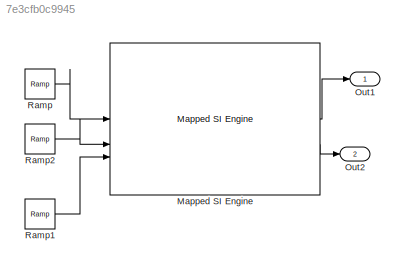
MODEL slx_7e3cfb0c9945
KIND model
CONFIG AbsTol = auto
CONFIG EnableMultiTasking = off
CONFIG FixedStep = auto
CONFIG MaxStep = auto
CONFIG MinStep = auto
CONFIG RelTol = 1e-3
CONFIG SampleTimeConstraint = Unconstrained
CONFIG SolverName = VariableStepAuto
CONFIG StartTime = 0.0
CONFIG StopTime = 50
BLOCK [Reference] Mapped SI Engine  REF=autolibsharedmappedengines/Mapped SI Engine
  LibrarySourceBlock = autolibenginesystems/Mapped SI Engine
  SourceBlock = autolibsharedmappedengines/Mapped SI Engine
  SourceType = Mapped SI Engine
BLOCK [Outport] Out1
BLOCK [Outport] Out2
  Port = 2
BLOCK [Reference] Ramp  REF=simulink/Sources/Ramp
  SourceBlock = simulink/Sources/Ramp
  SourceType = Ramp
BLOCK [Reference] Ramp1  REF=simulink/Sources/Ramp
  SourceBlock = simulink/Sources/Ramp
  SourceType = Ramp
BLOCK [Reference] Ramp2  REF=simulink/Sources/Ramp
  SourceBlock = simulink/Sources/Ramp
  SourceType = Ramp
LINE Mapped SI Engine:1 -> Out1:1
LINE Mapped SI Engine:2 -> Out2:1
LINE Ramp1:1 -> Mapped SI Engine:3
LINE Ramp2:1 -> Mapped SI Engine:2
LINE Ramp:1 -> Mapped SI Engine:1
